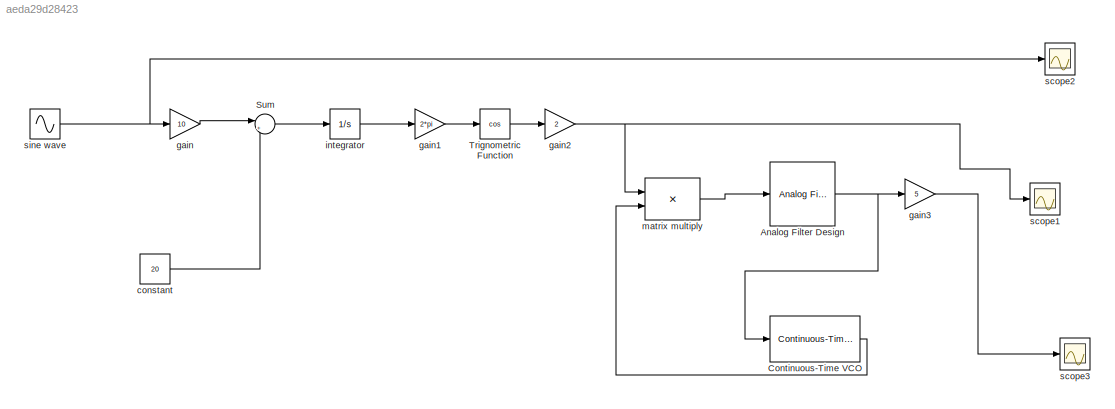
MODEL slx_aeda29d28423
KIND model
CONFIG AbsTol = auto
CONFIG EnableMultiTasking = off
CONFIG FixedStep = auto
CONFIG MaxStep = auto
CONFIG MinStep = auto
CONFIG RelTol = 1e-3
CONFIG SampleTimeConstraint = Unconstrained
CONFIG SolverName = VariableStepAuto
CONFIG StartTime = 0.0
CONFIG StopTime = 1
BLOCK [Reference] Analog Filter Design   REF=dsparch4/Analog
Filter Design
  SourceBlock = dsparch4/Analog\nFilter Design
  SourceType = Analog Filter Design
BLOCK [Reference] Continuous-Time VCO  REF=commsynccomp2/Continuous-Time
VCO
  SourceBlock = commsynccomp2/Continuous-Time\nVCO
  SourceType = Continuous-Time VCO
BLOCK [Sum] Sum
  Inputs = |++
BLOCK [Trigonometry] Trignometric Function 
  Operator = cos
BLOCK [Constant] constant
  Value = 20
BLOCK [Gain] gain
  Gain = 10
BLOCK [Gain] gain1
  Gain = 2*pi
BLOCK [Gain] gain2
  Gain = 2
BLOCK [Gain] gain3
  Gain = 5
BLOCK [Integrator] integrator
BLOCK [Product] matrix multiply
  Multiplication = Matrix(*)
BLOCK [Scope] scope1
  Floating = off
  NumInputPorts = 1
  ScopeSpecificationString = Simulink.scopes.TimeScopeBlockCfg('CurrentConfiguration', extmgr.ConfigurationSet(extmgr.Configuration('Core','General UI',true),extmgr.Configuration('Core','Source UI',true),extmgr.Configuration('Sources','WiredSimulink',true,'DataLoggingVariableName','ScopeData1'),extmgr.Configuration('Visuals','Time Domain',true,'SerializedDisplays',{struct('MinYLimReal','-2.49998','MaxYLimReal','2.5','YLabelRe...<+1406ch>
BLOCK [Scope] scope2
  Floating = off
  NumInputPorts = 1
  ScopeSpecificationString = Simulink.scopes.TimeScopeBlockCfg('CurrentConfiguration', extmgr.ConfigurationSet(extmgr.Configuration('Core','General UI',true),extmgr.Configuration('Core','Source UI',true),extmgr.Configuration('Sources','WiredSimulink',true),extmgr.Configuration('Visuals','Time Domain',true,'SerializedDisplays',{struct('MinYLimReal','-1.25','MaxYLimReal','1.25','YLabelReal','','MinYLimMag','0.00000','MaxYLimMag...<+1331ch>
BLOCK [Scope] scope3
  Floating = off
  NumInputPorts = 1
  ScopeSpecificationString = Simulink.scopes.TimeScopeBlockCfg('CurrentConfiguration', extmgr.ConfigurationSet(extmgr.Configuration('Core','General UI',true),extmgr.Configuration('Core','Source UI',true),extmgr.Configuration('Sources','WiredSimulink',true,'DataLoggingVariableName','ScopeData2'),extmgr.Configuration('Visuals','Time Domain',true,'SerializedDisplays',{struct('MinYLimReal','-0.25346','MaxYLimReal','2.10267','YLab...<+1388ch>
BLOCK [Sin] sine wave
  Frequency = 2*pi*2
  SampleTime = 1/1000
NET Analog Filter Design :1 -> Continuous-Time VCO:1, gain3:1
LINE Continuous-Time VCO:1 -> matrix multiply:2
LINE Sum:1 -> integrator:1
LINE Trignometric Function :1 -> gain2:1
LINE constant:1 -> Sum:2
LINE gain1:1 -> Trignometric Function :1
NET gain2:1 -> matrix multiply:1, scope1:1
LINE gain3:1 -> scope3:1
LINE gain:1 -> Sum:1
LINE integrator:1 -> gain1:1
LINE matrix multiply:1 -> Analog Filter Design :1
NET sine wave:1 -> gain:1, scope2:1
note: NET lines group one-source signal fan-out (src -> all destinations, sorted); 1:1 wires keep LINE
